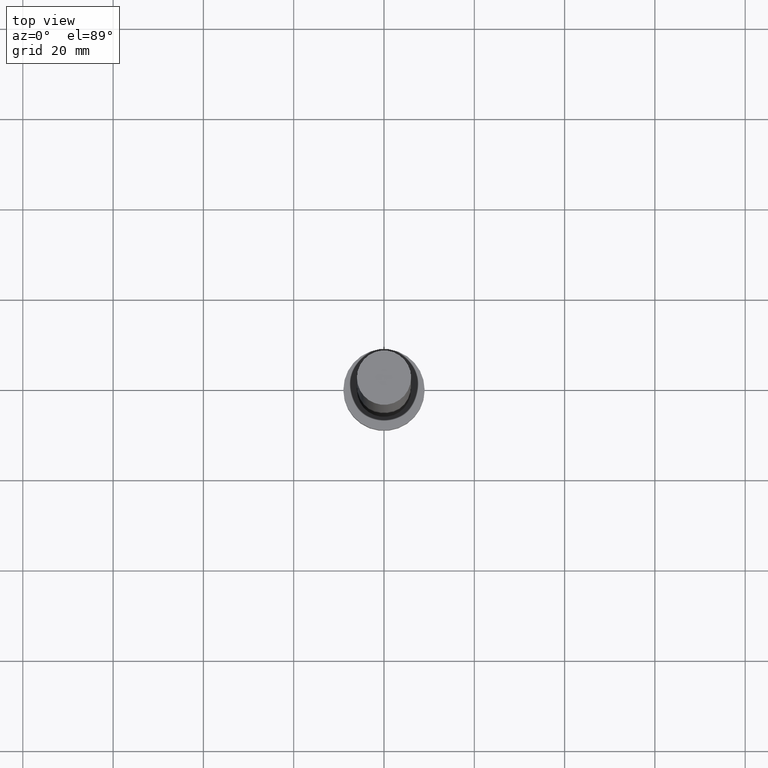
[diagram: clean part render]
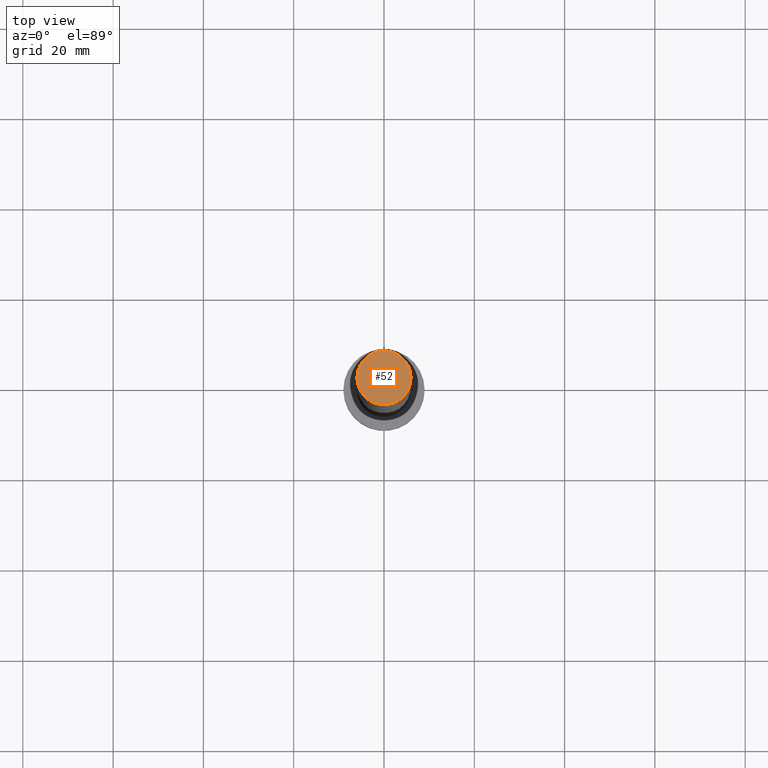
[diagram: same view with one face highlighted and labeled with its STEP entity id]
A machine part, top view. The second image highlights one B-rep face of the part: STEP entity #52.
In plain terms, the highlighted planar face has unit normal (0, 0, 1).
Its self-contained STEP definition (entity closure, byte-faithful):
#13 = DIRECTION ( 'NONE',  ( 1.000000000000000000, 0.000000000000000000, 0.000000000000000000 ) ) ;
#15 = CARTESIAN_POINT ( 'NONE',  ( -6.000000000000000888, 0.000000000000000000, 160.0000000000000000 ) ) ;
#20 = EDGE_CURVE ( 'NONE', #222, #225, #141, .T. ) ;
#51 = CARTESIAN_POINT ( 'NONE',  ( 0.000000000000000000, 0.000000000000000000, 160.0000000000000000 ) ) ;
#52 = ADVANCED_FACE ( 'NONE', ( #122 ), #170, .T. ) ;
#73 = CIRCLE ( 'NONE', #154, 6.000000000000000888 ) ;
#74 = CARTESIAN_POINT ( 'NONE',  ( 0.000000000000000000, 0.000000000000000000, 160.0000000000000000 ) ) ;
#87 = DIRECTION ( 'NONE',  ( 1.000000000000000000, 0.000000000000000000, 0.000000000000000000 ) ) ;
#107 = DIRECTION ( 'NONE',  ( 0.000000000000000000, 0.000000000000000000, 1.000000000000000000 ) ) ;
#111 = EDGE_CURVE ( 'NONE', #225, #222, #73, .T. ) ;
#117 = EDGE_LOOP ( 'NONE', ( #202, #134 ) ) ;
#119 = DIRECTION ( 'NONE',  ( 0.000000000000000000, 0.000000000000000000, 1.000000000000000000 ) ) ;
#121 = CARTESIAN_POINT ( 'NONE',  ( 0.000000000000000000, 0.000000000000000000, 160.0000000000000000 ) ) ;
#122 = FACE_OUTER_BOUND ( 'NONE', #117, .T. ) ;
#124 = AXIS2_PLACEMENT_3D ( 'NONE', #51, #107, #13 ) ;
#134 = ORIENTED_EDGE ( 'NONE', *, *, #111, .T. ) ;
#141 = CIRCLE ( 'NONE', #124, 6.000000000000000888 ) ;
#144 = CARTESIAN_POINT ( 'NONE',  ( 6.000000000000000888, 7.347880794884120722E-16, 160.0000000000000000 ) ) ;
#148 = AXIS2_PLACEMENT_3D ( 'NONE', #74, #119, #150 ) ;
#150 = DIRECTION ( 'NONE',  ( 1.000000000000000000, 0.000000000000000000, -0.000000000000000000 ) ) ;
#154 = AXIS2_PLACEMENT_3D ( 'NONE', #121, #203, #87 ) ;
#170 = PLANE ( 'NONE',  #148 ) ;
#202 = ORIENTED_EDGE ( 'NONE', *, *, #20, .T. ) ;
#203 = DIRECTION ( 'NONE',  ( 0.000000000000000000, 0.000000000000000000, 1.000000000000000000 ) ) ;
#222 = VERTEX_POINT ( 'NONE', #15 ) ;
#225 = VERTEX_POINT ( 'NONE', #144 ) ;